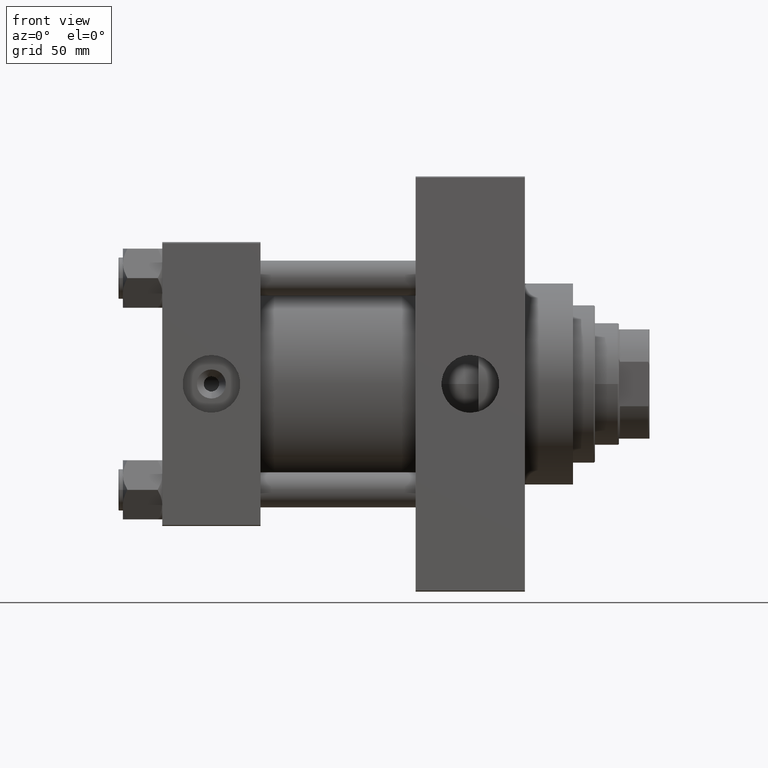
[diagram: clean part render]
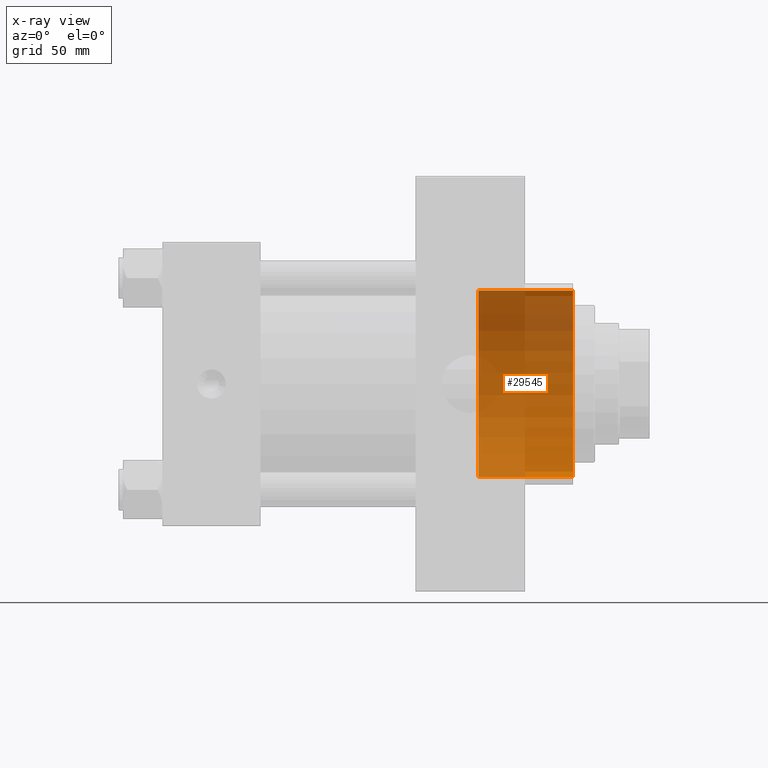
[diagram: x-ray — body ghosted, one internal face saturated and labeled with its STEP entity id]
A machine part, front view, then the same camera in x-ray: the body is ghosted and one INTERNAL B-rep face — a face not visible from any outside direction — is saturated and labeled: STEP entity #29545.
In plain terms, the highlighted cylindrical surface (partial cylindrical patch) has radius 42.75 mm, axis along (1, 0, 0).
Its self-contained STEP definition (entity closure, byte-faithful):
#1860 = ORIENTED_EDGE ( 'NONE', *, *, #3551, .F. ) ;
#3551 = EDGE_CURVE ( 'NONE', #45706, #39655, #47200, .T. ) ;
#3839 = CYLINDRICAL_SURFACE ( 'NONE', #17113, 42.75000000000000000 ) ;
#4757 = DIRECTION ( 'NONE',  ( 0.000000000000000000, 0.000000000000000000, -1.000000000000000000 ) ) ;
#7549 = ORIENTED_EDGE ( 'NONE', *, *, #16418, .T. ) ;
#10711 = CARTESIAN_POINT ( 'NONE',  ( 144.7399999999999807, 5.235365066354935472E-15, 42.75000000000000000 ) ) ;
#13364 = VERTEX_POINT ( 'NONE', #30166 ) ;
#13422 = VECTOR ( 'NONE', #44039, 1000.000000000000000 ) ;
#15135 = DIRECTION ( 'NONE',  ( 1.000000000000000000, 0.000000000000000000, 0.000000000000000000 ) ) ;
#16418 = EDGE_CURVE ( 'NONE', #13364, #25497, #20646, .T. ) ;
#17113 = AXIS2_PLACEMENT_3D ( 'NONE', #17615, #33059, #35983 ) ;
#17615 = CARTESIAN_POINT ( 'NONE',  ( 144.7399999999999807, 0.000000000000000000, 0.000000000000000000 ) ) ;
#18562 = FACE_OUTER_BOUND ( 'NONE', #35368, .T. ) ;
#19425 = AXIS2_PLACEMENT_3D ( 'NONE', #25296, #15135, #36881 ) ;
#19740 = CARTESIAN_POINT ( 'NONE',  ( 187.9999999999999716, 0.000000000000000000, 0.000000000000000000 ) ) ;
#20432 = ORIENTED_EDGE ( 'NONE', *, *, #47280, .F. ) ;
#20646 = CIRCLE ( 'NONE', #47646, 42.75000000000000000 ) ;
#22398 = CARTESIAN_POINT ( 'NONE',  ( 187.9999999999999716, 5.235365066354935472E-15, 42.75000000000000000 ) ) ;
#22576 = DIRECTION ( 'NONE',  ( 1.000000000000000000, -0.000000000000000000, -0.000000000000000000 ) ) ;
#25296 = CARTESIAN_POINT ( 'NONE',  ( 144.7399999999999807, 0.000000000000000000, 0.000000000000000000 ) ) ;
#25497 = VERTEX_POINT ( 'NONE', #22398 ) ;
#25895 = EDGE_CURVE ( 'NONE', #45706, #13364, #28899, .T. ) ;
#26485 = DIRECTION ( 'NONE',  ( 1.000000000000000000, 0.000000000000000000, 0.000000000000000000 ) ) ;
#28899 = LINE ( 'NONE', #44085, #33217 ) ;
#29545 = ADVANCED_FACE ( 'NONE', ( #18562 ), #3839, .F. ) ;
#29962 = CARTESIAN_POINT ( 'NONE',  ( 144.7399999999999807, 0.000000000000000000, -42.75000000000000000 ) ) ;
#30166 = CARTESIAN_POINT ( 'NONE',  ( 187.9999999999999716, 0.000000000000000000, -42.75000000000000000 ) ) ;
#30537 = ORIENTED_EDGE ( 'NONE', *, *, #25895, .T. ) ;
#33059 = DIRECTION ( 'NONE',  ( 1.000000000000000000, -0.000000000000000000, -0.000000000000000000 ) ) ;
#33217 = VECTOR ( 'NONE', #22576, 1000.000000000000000 ) ;
#35368 = EDGE_LOOP ( 'NONE', ( #20432, #1860, #30537, #7549 ) ) ;
#35983 = DIRECTION ( 'NONE',  ( 0.000000000000000000, 0.000000000000000000, -1.000000000000000000 ) ) ;
#36801 = LINE ( 'NONE', #10711, #13422 ) ;
#36881 = DIRECTION ( 'NONE',  ( 0.000000000000000000, 0.000000000000000000, -1.000000000000000000 ) ) ;
#39655 = VERTEX_POINT ( 'NONE', #41448 ) ;
#41448 = CARTESIAN_POINT ( 'NONE',  ( 144.7399999999999807, 5.235365066354935472E-15, 42.75000000000000000 ) ) ;
#44039 = DIRECTION ( 'NONE',  ( 1.000000000000000000, -0.000000000000000000, -0.000000000000000000 ) ) ;
#44085 = CARTESIAN_POINT ( 'NONE',  ( 144.7399999999999807, 0.000000000000000000, -42.75000000000000000 ) ) ;
#45706 = VERTEX_POINT ( 'NONE', #29962 ) ;
#47200 = CIRCLE ( 'NONE', #19425, 42.75000000000000000 ) ;
#47280 = EDGE_CURVE ( 'NONE', #39655, #25497, #36801, .T. ) ;
#47646 = AXIS2_PLACEMENT_3D ( 'NONE', #19740, #26485, #4757 ) ;